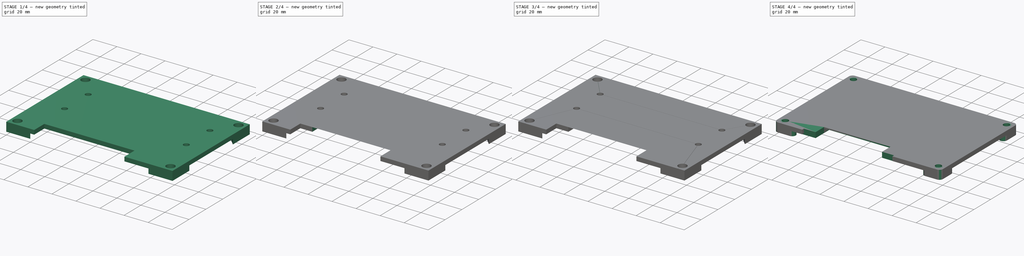
[diagram: build sequence overview — one tinted view per stage of 4, left to right]
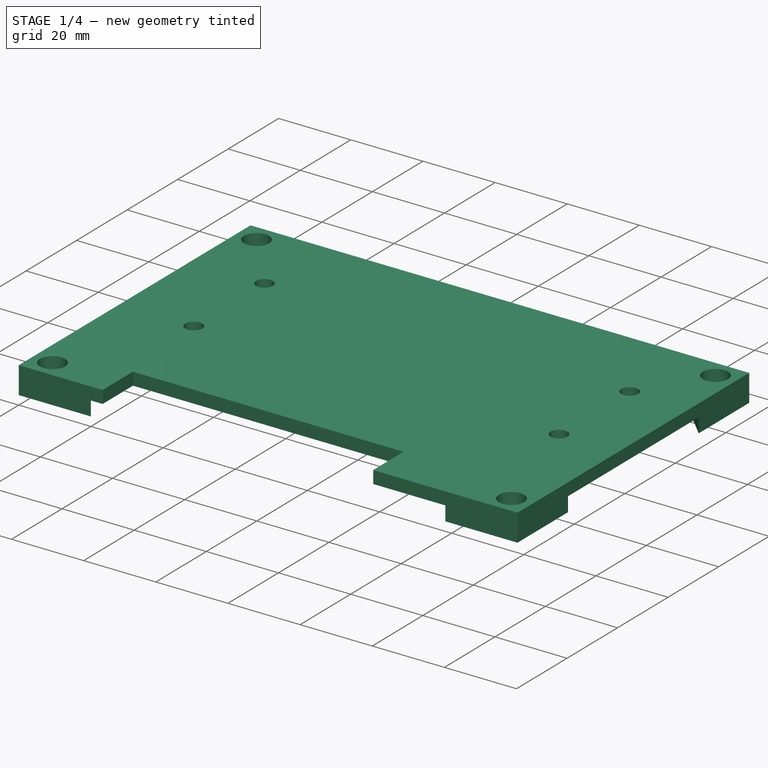
[diagram: stage 1 of 4 — iso view after this stage's code; geometry added in this stage tinted green]
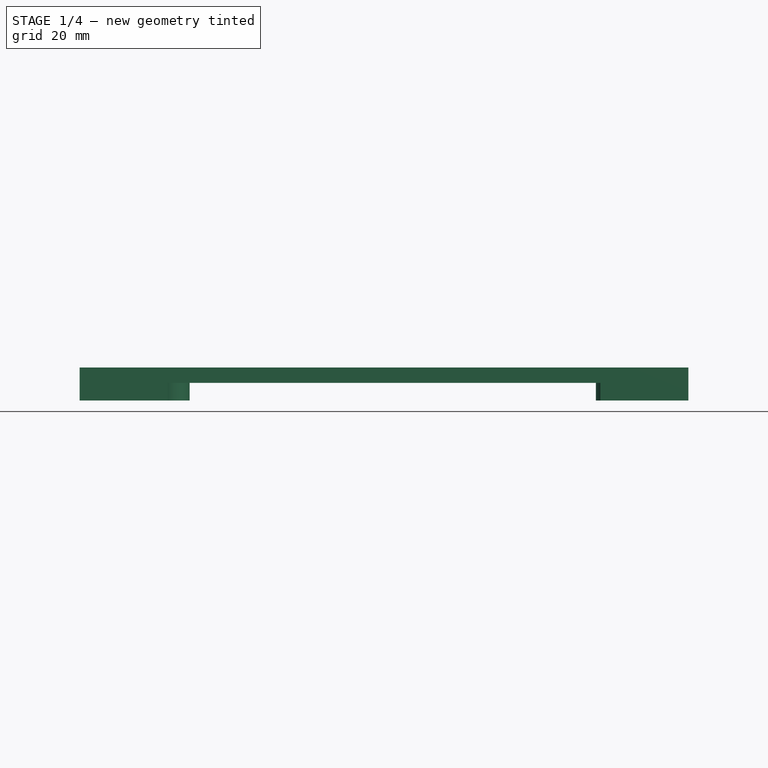
[diagram: stage 1 of 4 — front view after this stage's code; geometry added in this stage tinted green]
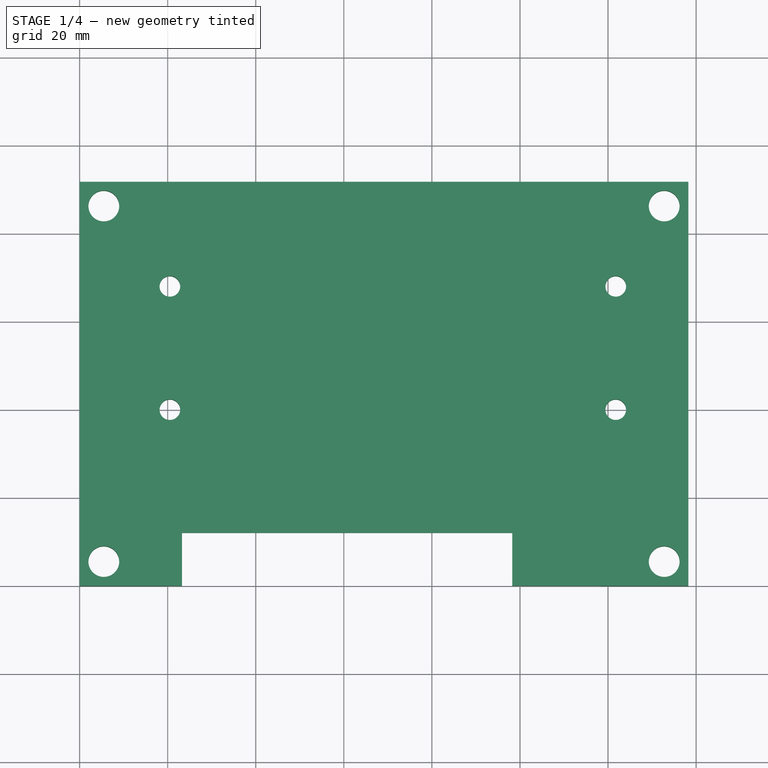
[diagram: stage 1 of 4 — top view after this stage's code; geometry added in this stage tinted green]
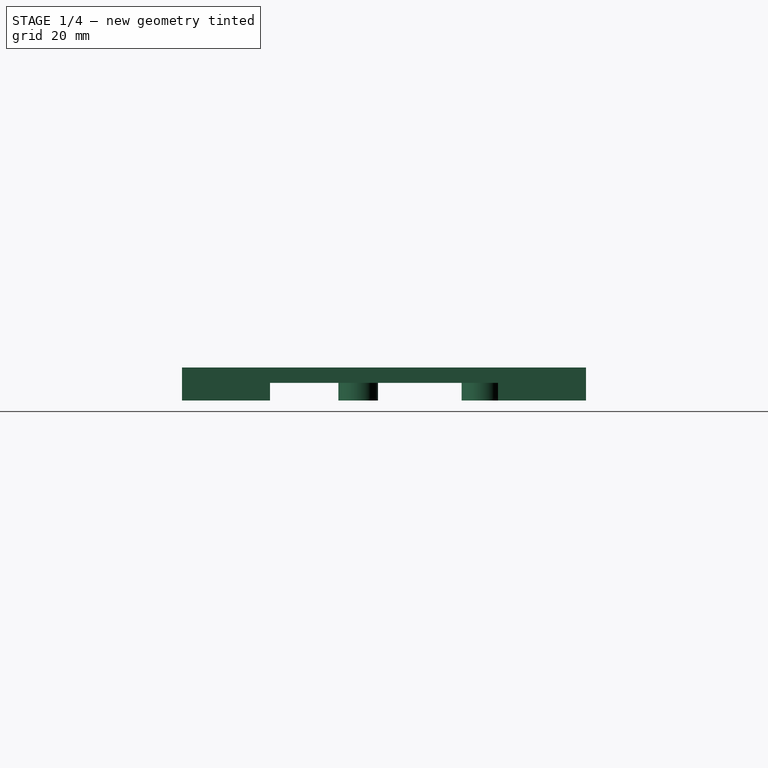
[diagram: stage 1 of 4 — right view after this stage's code; geometry added in this stage tinted green]
FCSTD DOCUMENT  (FreeCAD 0.18R4 (GitTag))
Label: LCD_back_V0.2.3
License: CreativeCommons Attribution-ShareAlike
LicenseURL: http://creativecommons.org/licenses/by-sa/4.0/
objects: Sketcher::SketchObject×9, PartDesign::Pocket×7, PartDesign::Pad×3, PartDesign::Chamfer×2, Part::FeaturePython×1, PartDesign::Fillet×1, PartDesign::Body×1
note: 34 computed .brp shape members not serialized (recipe doc carries the construction recipe); baked Part::Feature solids carry a one-line shape summary decoded from their .brp

FEATURE [Sketcher::SketchObject] Sketch
  MapMode = 5
  Support = -> [XY_Plane]
  sketch-geometry (12):
    g0: LineSegment StartX=0 StartY=91.75 StartZ=0 EndX=138.25 EndY=91.75 EndZ=0
    g1: LineSegment StartX=138.25 StartY=91.75 StartZ=0 EndX=138.25 EndY=0 EndZ=0
    g2: LineSegment StartX=138.25 StartY=0 StartZ=0 EndX=0 EndY=0 EndZ=0
    g3: LineSegment StartX=0 StartY=0 StartZ=0 EndX=0 EndY=91.75 EndZ=0
    g4: Circle CenterX=5.5 CenterY=5.5 CenterZ=0 NormalX=0 NormalY=0 NormalZ=1 AngleXU=0 Radius=3.5
    g5: Circle CenterX=132.75 CenterY=5.5 CenterZ=0 NormalX=0 NormalY=0 NormalZ=1 AngleXU=0 Radius=3.5
    g6: Circle CenterX=5.5 CenterY=86.25 CenterZ=0 NormalX=0 NormalY=0 NormalZ=1 AngleXU=0 Radius=3.5
    g7: Circle CenterX=132.75 CenterY=86.25 CenterZ=0 NormalX=0 NormalY=0 NormalZ=1 AngleXU=0 Radius=3.5
    g8: LineSegment [constr] StartX=5.5 StartY=86.25 StartZ=0 EndX=132.75 EndY=86.25 EndZ=0
    g9: LineSegment [constr] StartX=132.75 StartY=86.25 StartZ=0 EndX=132.75 EndY=5.5 EndZ=0
    g10: LineSegment [constr] StartX=132.75 StartY=5.5 StartZ=0 EndX=5.5 EndY=5.5 EndZ=0
    g11: LineSegment [constr] StartX=5.5 StartY=5.5 StartZ=0 EndX=5.5 EndY=86.25 EndZ=0
  constraints (31):
    c: Coincident(g0,g1)
    c: Coincident(g1,g2)
    c: Coincident(g2,g3)
    c: Coincident(g3,g0)
    c: Horizontal(g0)
    c: Horizontal(g2)
    c: Vertical(g1)
    c: Vertical(g3)
    c: Coincident(g2,g-1)
    c: DistanceX(g0,g0) = 138.25
    c: DistanceY(g1,g1) = 91.75
    c: Coincident(g8,g9)
    c: Coincident(g9,g10)
    c: Coincident(g10,g11)
    c: Coincident(g11,g8)
    c: Horizontal(g8)
    c: Horizontal(g10)
    c: Vertical(g9)
    c: Vertical(g11)
    c: Coincident(g5,g9)
    c: Coincident(g4,g10)
    c: Coincident(g6,g8)
    c: Coincident(g7,g8)
    c: DistanceX(g4) = 5.5
    c: DistanceY(g4) = 5.5
    c: DistanceX(g10,g10) = 127.25
    c: DistanceY(g11,g11) = 80.75
    c: Radius(g4) = 3.5
    c: Equal(g4,g5)
    c: Equal(g4,g6)
    c: Equal(g4,g7)
FEATURE [PartDesign::Pad] Pad
  Length = 7.5
  Length2 = 100
  Profile = -> Sketch
  Reversed = true
  Type = 0
FEATURE [Sketcher::SketchObject] Sketch001
  ExternalGeometry = -> [Pad]
  MapMode = 5
  Placement = pos=(0,0,-7.5) rot=(1,0,0;3.14159rad)
  Support = -> [Pad]
  sketch-geometry (4):
    g0: LineSegment StartX=23.25 StartY=0 StartZ=0 EndX=98.25 EndY=0 EndZ=0
    g1: LineSegment StartX=98.25 StartY=0 StartZ=0 EndX=98.25 EndY=-12 EndZ=0
    g2: LineSegment StartX=98.25 StartY=-12 StartZ=0 EndX=23.25 EndY=-12 EndZ=0
    g3: LineSegment StartX=23.25 StartY=-12 StartZ=0 EndX=23.25 EndY=0 EndZ=0
  constraints (12):
    c: Coincident(g0,g1)
    c: Coincident(g1,g2)
    c: Coincident(g2,g3)
    c: Coincident(g3,g0)
    c: Horizontal(g0)
    c: Horizontal(g2)
    c: Vertical(g1)
    c: Vertical(g3)
    c: DistanceX(g0) = 98.25
    c: DistanceY(g0) = 0
    c: DistanceX(g0,g0) = 75
    c: DistanceY(g1,g1) = 12
FEATURE [PartDesign::Pocket] Pocket
  BaseFeature = -> Pad
  Length = 5
  Length2 = 100
  Profile = -> Sketch001
  Type = 1
FEATURE [Sketcher::SketchObject] Sketch002
  ExternalGeometry = -> [Pocket]
  MapMode = 5
  Placement = pos=(0,0,-7.5) rot=(1,0,0;3.14159rad)
  Support = -> [Pocket]
  sketch-geometry (17):
    g0: LineSegment StartX=0 StartY=-20 StartZ=0 EndX=20 EndY=0 EndZ=0
    g1: LineSegment StartX=20 StartY=0 StartZ=0 EndX=118.25 EndY=0 EndZ=0
    g2: LineSegment StartX=118.25 StartY=0 StartZ=0 EndX=138.25 EndY=-20 EndZ=0
    g3: LineSegment StartX=138.25 StartY=-20 StartZ=0 EndX=138.25 EndY=-71.75 EndZ=0
    g4: LineSegment StartX=138.25 StartY=-71.75 StartZ=0 EndX=118.25 EndY=-91.75 EndZ=0
    g5: LineSegment StartX=118.25 StartY=-91.75 StartZ=0 EndX=20 EndY=-91.75 EndZ=0
    g6: LineSegment StartX=20 StartY=-91.75 StartZ=0 EndX=0 EndY=-71.75 EndZ=0
    g7: LineSegment StartX=0 StartY=-71.75 StartZ=0 EndX=0 EndY=-20 EndZ=0
    g8: Circle CenterX=20.5 CenterY=-40 CenterZ=0 NormalX=0 NormalY=0 NormalZ=1 AngleXU=0 Radius=4.5
    g9: Circle CenterX=20.5 CenterY=-68 CenterZ=0 NormalX=0 NormalY=0 NormalZ=1 AngleXU=0 Radius=4.5
    g10: Circle CenterX=121.75 CenterY=-68 CenterZ=0 NormalX=0 NormalY=0 NormalZ=1 AngleXU=0 Radius=4.5
    g11: LineSegment [constr] StartX=121.75 StartY=-68 StartZ=0 EndX=20.5 EndY=-68 EndZ=0
    g12: LineSegment [constr] StartX=20.5 StartY=-68 StartZ=0 EndX=20.5 EndY=-40 EndZ=0
    g13: LineSegment [constr] StartX=20.5 StartY=-40 StartZ=0 EndX=121.75 EndY=-40 EndZ=0
    g14: LineSegment [constr] StartX=121.75 StartY=-40 StartZ=0 EndX=121.75 EndY=-68 EndZ=0
    g15: LineSegment [constr] StartX=121.75 StartY=-68 StartZ=0 EndX=121.75 EndY=-40 EndZ=0
    g16: Circle CenterX=121.75 CenterY=-40 CenterZ=0 NormalX=0 NormalY=0 NormalZ=1 AngleXU=0 Radius=4.5
  constraints (47):
    c: Coincident(g0,g1)
    c: Coincident(g1,g2)
    c: Coincident(g2,g3)
    c: Coincident(g3,g4)
    c: Coincident(g4,g5)
    c: Coincident(g5,g6)
    c: Coincident(g6,g7)
    c: Coincident(g7,g0)
    c: Horizontal(g1)
    c: Horizontal(g5)
    c: Vertical(g3)
    c: Vertical(g7)
    c: PointOnObject(g0,g-4)
    c: PointOnObject(g2,g-3)
    c: PointOnObject(g1,g-1)
    c: PointOnObject(g4,g-5)
    c: Equal(g2,g6)
    c: Equal(g4,g0)
    c: Equal(g0,g6)
    c: Parallel(g2,g6)
    c: Parallel(g0,g4)
    c: Angle(g2) = -0.785398
    c: Angle(g4) = -2.35619
    c: DistanceY(g2) = -20
    c: Coincident(g11,g12)
    c: Coincident(g12,g13)
    c: Coincident(g13,g14)
    c: Coincident(g14,g11)
    c: Horizontal(g11)
    c: Horizontal(g13)
    c: Vertical(g12)
    c: Vertical(g14)
    c: Coincident(g8,g12)
    c: Coincident(g9,g11)
    c: Coincident(g10,g11)
    c: Vertical(g15)
    c: DistanceX(g8) = 20.5
    c: DistanceY(g8) = -40
    c: DistanceY(g12,g12) = 28
    c: Coincident(g15,g16)
    c: DistanceY(g15,g15) = 28
    c: DistanceX(g11,g11) = 101.25
    c: Coincident(g10,g15)
    c: Equal(g8,g9)
    c: Equal(g9,g16)
    c: Equal(g16,g10)
    c: Radius(g10) = 4.5
FEATURE [PartDesign::Pocket] Pocket001
  BaseFeature = -> Pocket
  Length = 4
  Length2 = 100
  Profile = -> Sketch002
  Type = 0
FEATURE [Sketcher::SketchObject] Sketch003
  ExternalGeometry = -> [Pocket001]
  MapMode = 5
  Placement = pos=(0,0,-7.5) rot=(1,0,0;3.14159rad)
  Support = -> [Pocket001]
  sketch-geometry (4):
    g0: Circle CenterX=20.5 CenterY=-40 CenterZ=0 NormalX=0 NormalY=0 NormalZ=1 AngleXU=0 Radius=2.35
    g1: Circle CenterX=121.75 CenterY=-40 CenterZ=0 NormalX=0 NormalY=0 NormalZ=1 AngleXU=0 Radius=2.35
    g2: Circle CenterX=121.75 CenterY=-68 CenterZ=0 NormalX=0 NormalY=0 NormalZ=1 AngleXU=0 Radius=2.35
    g3: Circle CenterX=20.5 CenterY=-68 CenterZ=0 NormalX=0 NormalY=0 NormalZ=1 AngleXU=0 Radius=2.35
  constraints (8):
    c: Coincident(g3,g-3)
    c: Coincident(g2,g-6)
    c: Coincident(g1,g-5)
    c: Coincident(g0,g-4)
    c: Radius(g0) = 2.35
    c: Equal(g0,g1)
    c: Equal(g0,g2)
    c: Equal(g0,g3)
FEATURE [PartDesign::Pocket] Pocket002
  BaseFeature = -> Pocket001
  Length = 5
  Length2 = 100
  Profile = -> Sketch003
  Type = 1
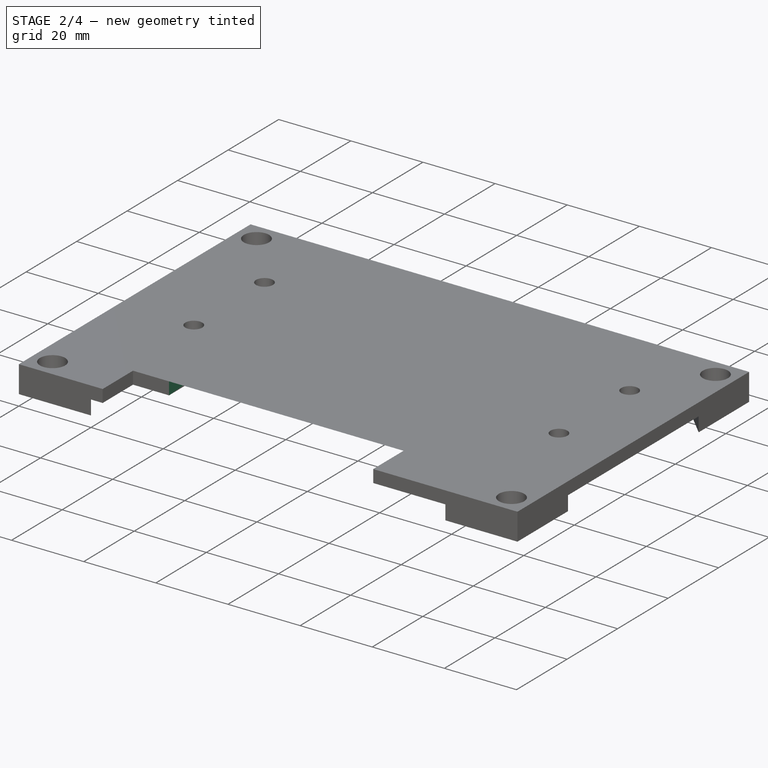
[diagram: stage 2 of 4 — iso view after this stage's code; geometry added in this stage tinted green]
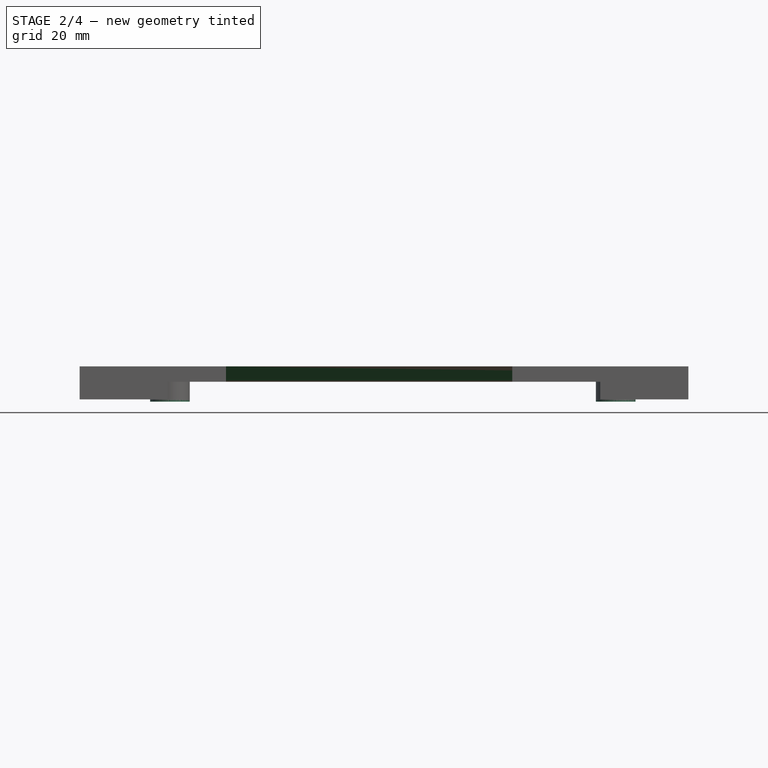
[diagram: stage 2 of 4 — front view after this stage's code; geometry added in this stage tinted green]
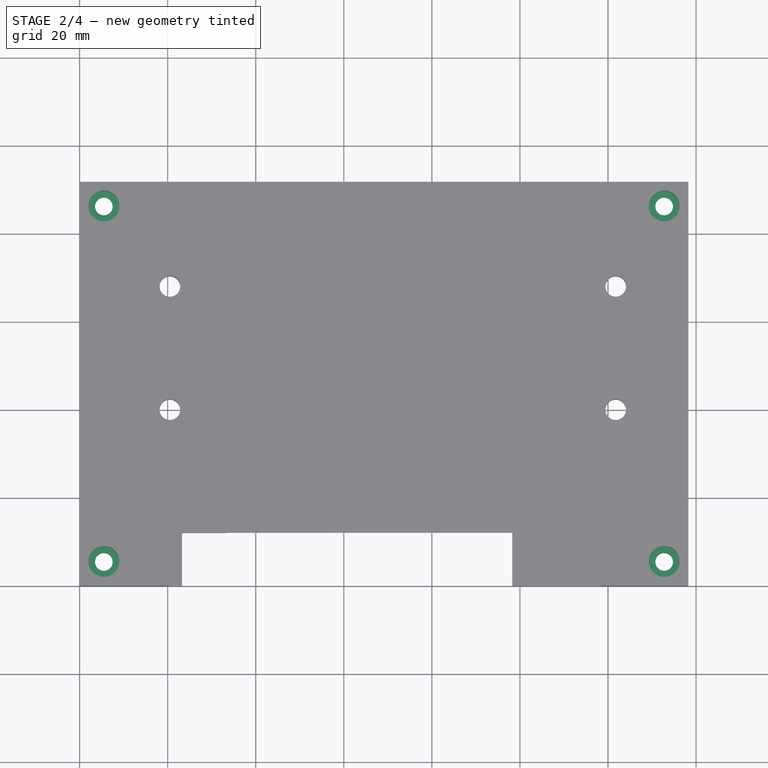
[diagram: stage 2 of 4 — top view after this stage's code; geometry added in this stage tinted green]
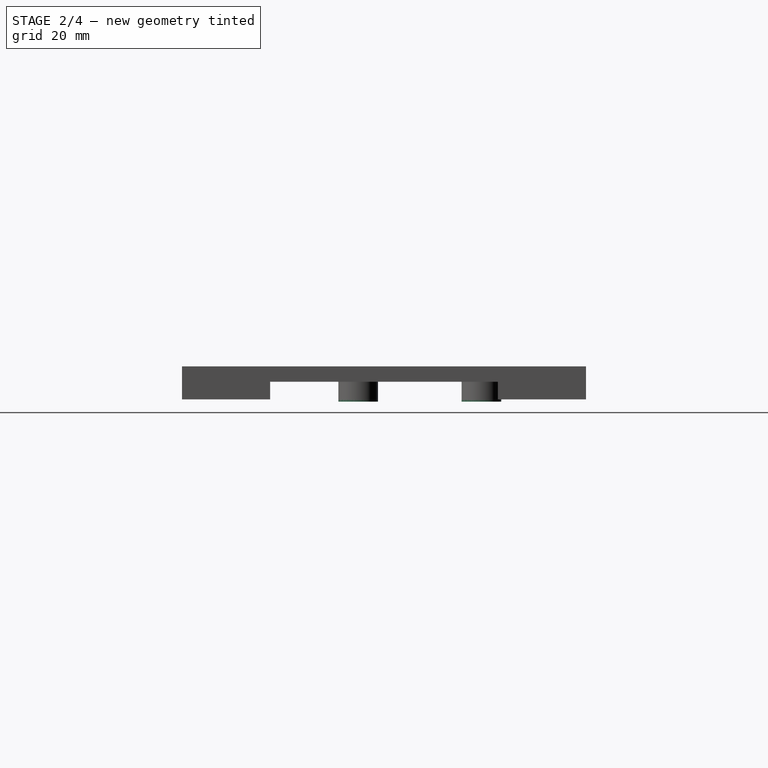
[diagram: stage 2 of 4 — right view after this stage's code; geometry added in this stage tinted green]
FEATURE [Sketcher::SketchObject] Sketch004
  ExternalGeometry = -> [Pocket002]
  MapMode = 5
  Placement = pos=(98.25,0,0) rot=(0.57735,-0.57735,-0.57735;2.0944rad)
  Support = -> [Pocket002]
  sketch-geometry (3):
    g0: LineSegment StartX=-12 StartY=-3.5 StartZ=0 EndX=-32 EndY=-3.5 EndZ=0
    g1: LineSegment StartX=-12 StartY=-3.5 StartZ=0 EndX=-12 EndY=-7.0002e-12 EndZ=0
    g2: ArcOfCircle CenterX=-32 CenterY=55.3929 CenterZ=0 NormalX=0 NormalY=0 NormalZ=1 AngleXU=0 Radius=58.8929 StartAngle=4.71239 EndAngle=5.05888
  constraints (8):
    c: Coincident(g0,g1)
    c: Coincident(g0,g-3)
    c: Vertical(g1)
    c: Horizontal(g0)
    c: Coincident(g1,g2)
    c: DistanceX(g0,g0) = 20
    c: DistanceY(g1,g1) = 3.5
    c: Tangent(g0,g2) = 1.5708
FEATURE [PartDesign::Pocket] Pocket003
  BaseFeature = -> Pocket002
  Length = 65
  Length2 = 100
  Profile = -> Sketch004
  Reversed = true
  Type = 0
FEATURE [Sketcher::SketchObject] Sketch005
  ExternalGeometry = -> [Pocket003]
  MapMode = 5
  Placement = pos=(0,0,-7.5) rot=(1,0,0;3.14159rad)
  Support = -> [Pocket003]
  sketch-geometry (8):
    g0: Circle CenterX=5.5 CenterY=-86.25 CenterZ=0 NormalX=0 NormalY=0 NormalZ=1 AngleXU=0 Radius=2
    g1: Circle CenterX=132.75 CenterY=-5.5 CenterZ=0 NormalX=0 NormalY=0 NormalZ=1 AngleXU=0 Radius=2
    g2: Circle CenterX=5.5 CenterY=-5.5 CenterZ=0 NormalX=0 NormalY=0 NormalZ=1 AngleXU=0 Radius=2
    g3: Circle CenterX=132.75 CenterY=-86.25 CenterZ=0 NormalX=0 NormalY=0 NormalZ=1 AngleXU=0 Radius=2
    g4: Circle CenterX=5.5 CenterY=-5.5 CenterZ=0 NormalX=0 NormalY=0 NormalZ=1 AngleXU=0 Radius=3.5
    g5: Circle CenterX=132.75 CenterY=-86.25 CenterZ=0 NormalX=0 NormalY=0 NormalZ=1 AngleXU=0 Radius=3.5
    g6: Circle CenterX=132.75 CenterY=-5.5 CenterZ=0 NormalX=0 NormalY=0 NormalZ=1 AngleXU=0 Radius=3.5
    g7: Circle CenterX=5.5 CenterY=-86.25 CenterZ=0 NormalX=0 NormalY=0 NormalZ=1 AngleXU=0 Radius=3.5
  constraints (16):
    c: Radius(g0) = 2
    c: Equal(g0,g1)
    c: Equal(g0,g2)
    c: Equal(g3,g2)
    c: Coincident(g0,g7)
    c: Coincident(g2,g4)
    c: Coincident(g3,g5)
    c: Coincident(g1,g6)
    c: Equal(g6,g5)
    c: Equal(g5,g4)
    c: Equal(g4,g7)
    c: Coincident(g-8,g2)
    c: Coincident(g0,g-12)
    c: Coincident(g3,g-9)
    c: Coincident(g1,g-13)
    c: Equal(g6,g-13)
FEATURE [PartDesign::Pad] Pad001
  BaseFeature = -> Pocket003
  Length = 1
  Length2 = 100
  Profile = -> Sketch005
  Reversed = true
  Type = 0
FEATURE [Sketcher::SketchObject] Sketch007
  ExternalGeometry = -> [Pad001]
  MapMode = 5
  Placement = pos=(0,0,-7.5) rot=(1,0,0;3.14159rad)
  Support = -> [Pad001]
  sketch-geometry (8):
    g0: Circle CenterX=20.5 CenterY=-40 CenterZ=0 NormalX=0 NormalY=0 NormalZ=1 AngleXU=0 Radius=2.35
    g1: Circle CenterX=20.5 CenterY=-40 CenterZ=0 NormalX=0 NormalY=0 NormalZ=1 AngleXU=0 Radius=4.5
    g2: Circle CenterX=121.75 CenterY=-40 CenterZ=0 NormalX=0 NormalY=0 NormalZ=1 AngleXU=0 Radius=4.5
    g3: Circle CenterX=121.75 CenterY=-40 CenterZ=0 NormalX=0 NormalY=0 NormalZ=1 AngleXU=0 Radius=2.35
    g4: Circle CenterX=121.75 CenterY=-68 CenterZ=0 NormalX=0 NormalY=0 NormalZ=1 AngleXU=0 Radius=2.35
    g5: Circle CenterX=121.75 CenterY=-68 CenterZ=0 NormalX=0 NormalY=0 NormalZ=1 AngleXU=0 Radius=4.5
    g6: Circle CenterX=20.5 CenterY=-68 CenterZ=0 NormalX=0 NormalY=0 NormalZ=1 AngleXU=0 Radius=4.5
    g7: Circle CenterX=20.5 CenterY=-68 CenterZ=0 NormalX=0 NormalY=0 NormalZ=1 AngleXU=0 Radius=2.35
  constraints (16):
    c: Coincident(g6,g7)
    c: Coincident(g6,g-3)
    c: Coincident(g0,g1)
    c: Coincident(g0,g-4)
    c: Coincident(g2,g3)
    c: Coincident(g2,g-5)
    c: Coincident(g4,g5)
    c: Coincident(g4,g-6)
    c: Radius(g4) = 2.35
    c: Equal(g4,g3)
    c: Equal(g4,g0)
    c: Equal(g4,g7)
    c: Radius(g2) = 4.5
    c: Equal(g5,g2)
    c: Equal(g2,g1)
    c: Equal(g1,g6)
FEATURE [PartDesign::Pad] Pad002
  BaseFeature = -> Pad001
  Length = 0.5
  Length2 = 100
  Profile = -> Sketch007
  Type = 0
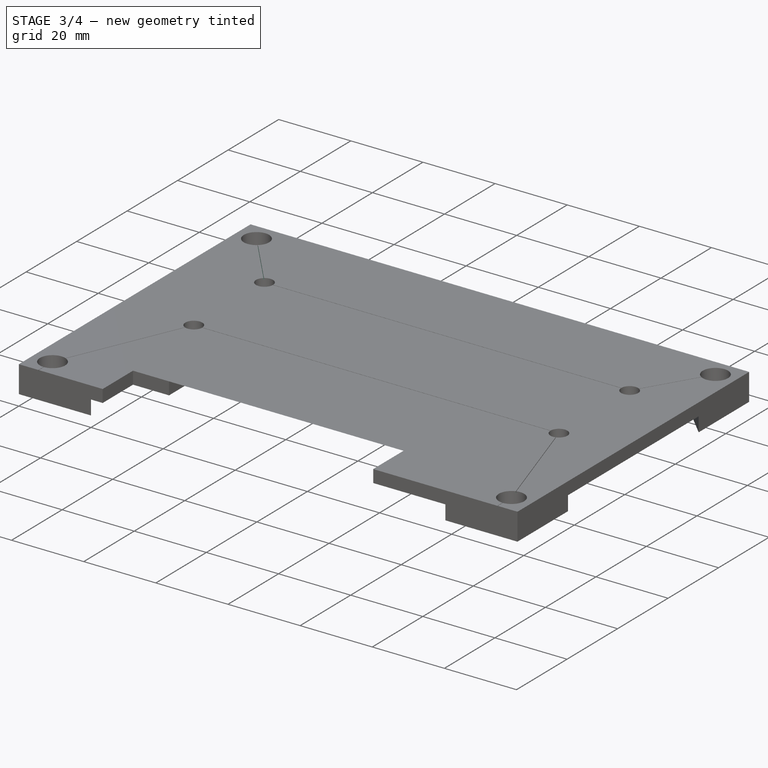
[diagram: stage 3 of 4 — iso view after this stage's code; geometry added in this stage tinted green]
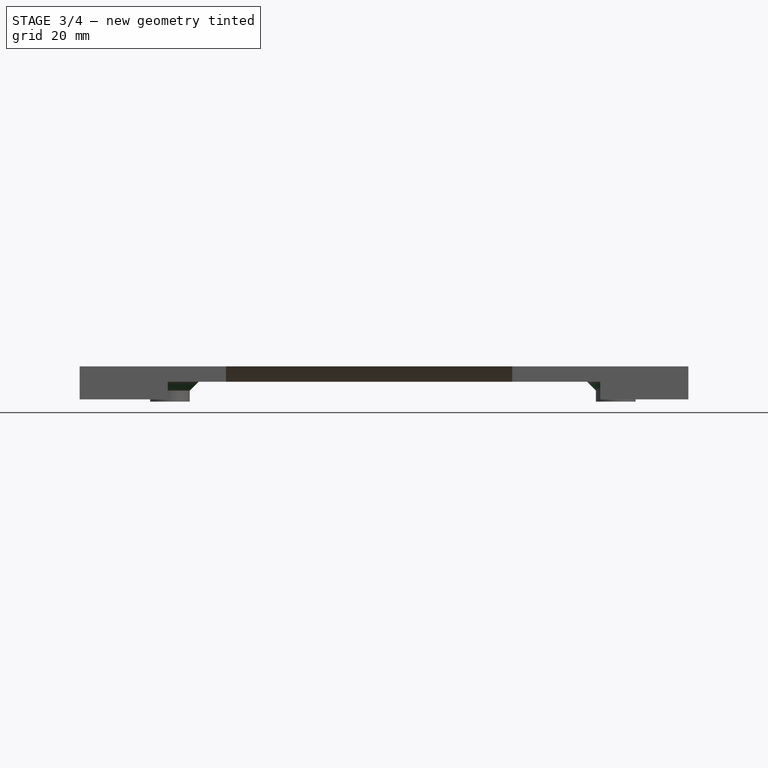
[diagram: stage 3 of 4 — front view after this stage's code; geometry added in this stage tinted green]
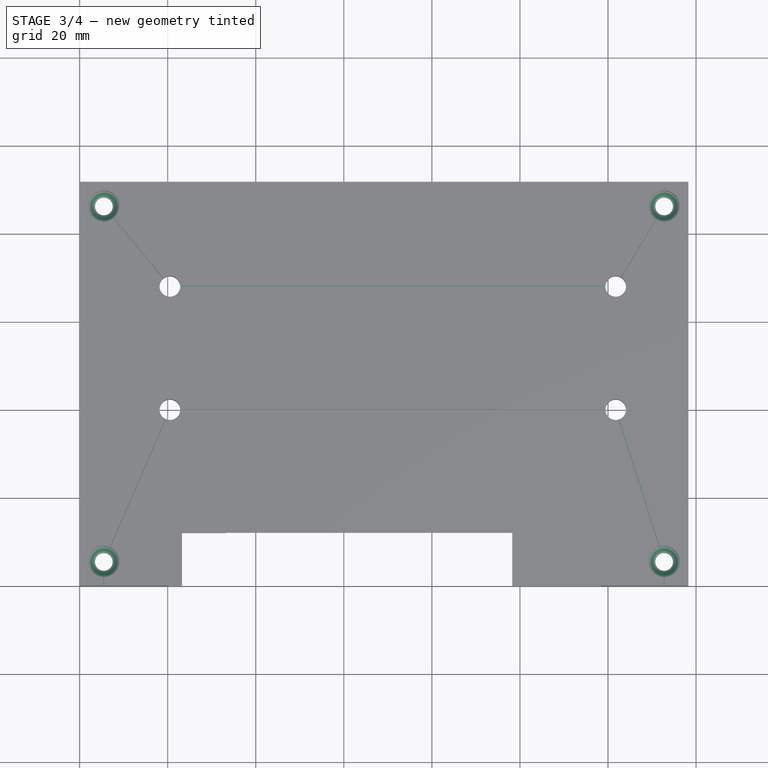
[diagram: stage 3 of 4 — top view after this stage's code; geometry added in this stage tinted green]
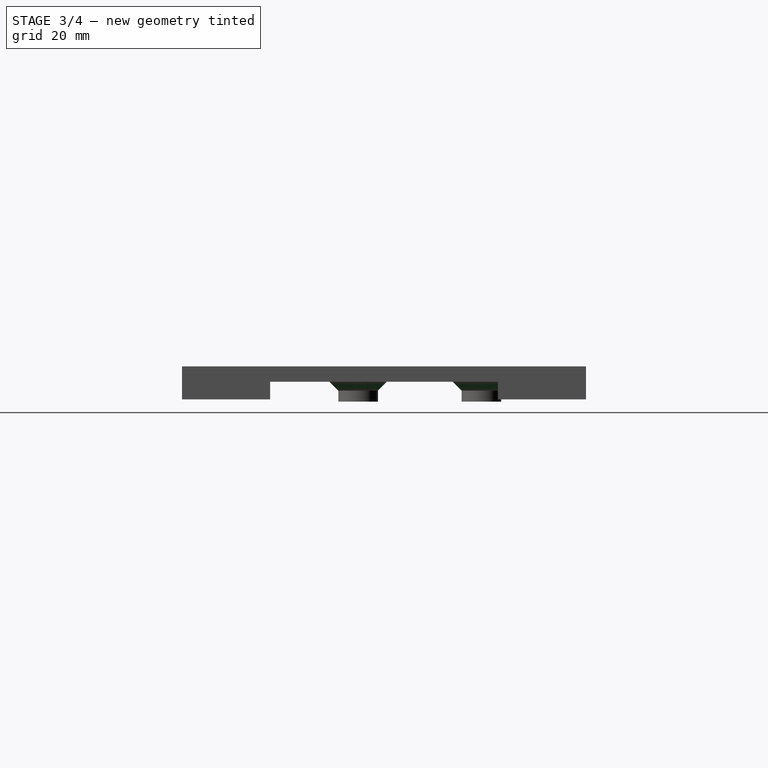
[diagram: stage 3 of 4 — right view after this stage's code; geometry added in this stage tinted green]
FEATURE [Sketcher::SketchObject] Sketch006
  ExternalGeometry = -> [Pad002]
  MapMode = 5
  sketch-geometry (36):
    g0: LineSegment StartX=22.8495 StartY=68.05 StartZ=0 EndX=119.401 EndY=68.05 EndZ=0
    g1: LineSegment StartX=119.401 StartY=68.05 StartZ=0 EndX=119.401 EndY=67.95 EndZ=0
    g2: LineSegment StartX=119.401 StartY=67.95 StartZ=0 EndX=22.8495 EndY=67.95 EndZ=0
    g3: LineSegment StartX=22.8495 StartY=67.95 StartZ=0 EndX=22.8495 EndY=68.05 EndZ=0
    g4: LineSegment StartX=22.8495 StartY=40.05 StartZ=0 EndX=119.401 EndY=40.05 EndZ=0
    g5: LineSegment StartX=119.401 StartY=40.05 StartZ=0 EndX=119.401 EndY=39.95 EndZ=0
    g6: LineSegment StartX=119.401 StartY=39.95 StartZ=0 EndX=22.8495 EndY=39.95 EndZ=0
    g7: LineSegment StartX=22.8495 StartY=39.95 StartZ=0 EndX=22.8495 EndY=40.05 EndZ=0
    g8: LineSegment StartX=7.76078 StartY=83.5781 StartZ=0 EndX=19.0468 EndY=69.8468 EndZ=0
    g9: LineSegment StartX=19.0468 StartY=69.8468 StartZ=0 EndX=18.9695 EndY=69.7833 EndZ=0
    g10: LineSegment StartX=18.9695 StartY=69.7833 StartZ=0 EndX=7.68352 EndY=83.5146 EndZ=0
    g11: LineSegment StartX=7.68352 StartY=83.5146 StartZ=0 EndX=7.76078 EndY=83.5781 EndZ=0
    g12: LineSegment StartX=122.92 StartY=70.038 StartZ=0 EndX=130.901 EndY=83.2785 EndZ=0
    g13: LineSegment StartX=130.901 StartY=83.2785 StartZ=0 EndX=130.986 EndY=83.2269 EndZ=0
    g14: LineSegment StartX=130.986 StartY=83.2269 StartZ=0 EndX=123.006 EndY=69.9864 EndZ=0
    g15: LineSegment StartX=123.006 StartY=69.9864 StartZ=0 EndX=122.92 EndY=70.038 EndZ=0
    g16: LineSegment StartX=122.416 StartY=37.7464 StartZ=0 EndX=131.639 EndY=8.81908 EndZ=0
    g17: LineSegment StartX=131.639 StartY=8.81908 StartZ=0 EndX=131.735 EndY=8.84945 EndZ=0
    g18: LineSegment StartX=131.735 StartY=8.84945 StartZ=0 EndX=122.511 EndY=37.7767 EndZ=0
    g19: LineSegment StartX=122.511 StartY=37.7767 StartZ=0 EndX=122.416 EndY=37.7464 EndZ=0
    g20: LineSegment StartX=19.5174 StartY=37.8653 StartZ=0 EndX=19.6091 EndY=37.8254 EndZ=0
    g21: LineSegment StartX=19.6091 StartY=37.8254 StartZ=0 EndX=6.94125 EndY=8.68948 EndZ=0
    g22: LineSegment StartX=6.94125 StartY=8.68948 StartZ=0 EndX=6.84955 EndY=8.72935 EndZ=0
    g23: LineSegment StartX=6.84955 StartY=8.72935 StartZ=0 EndX=19.5174 EndY=37.8653 EndZ=0
    g24: LineSegment [constr] StartX=5.5 StartY=5.5 StartZ=0 EndX=20.5 EndY=40 EndZ=0
    g25: LineSegment [constr] StartX=121.75 StartY=40 StartZ=0 EndX=132.75 EndY=5.5 EndZ=0
    g26: LineSegment [constr] StartX=121.75 StartY=68 StartZ=0 EndX=132.75 EndY=86.25 EndZ=0
    g27: LineSegment [constr] StartX=5.5 StartY=86.25 StartZ=0 EndX=20.5 EndY=68 EndZ=0
    g28: LineSegment StartX=5.45 StartY=2.00036 StartZ=0 EndX=5.55 EndY=2.00036 EndZ=0
    g29: LineSegment StartX=5.55 StartY=2.00036 StartZ=0 EndX=5.55 EndY=0 EndZ=0
    g30: LineSegment StartX=5.55 StartY=0 StartZ=0 EndX=5.45 EndY=0 EndZ=0
    g31: LineSegment StartX=5.45 StartY=0 StartZ=0 EndX=5.45 EndY=2.00036 EndZ=0
    g32: LineSegment StartX=132.7 StartY=2.00036 StartZ=0 EndX=132.8 EndY=2.00036 EndZ=0
    g33: LineSegment StartX=132.8 StartY=2.00036 StartZ=0 EndX=132.8 EndY=0 EndZ=0
    g34: LineSegment StartX=132.8 StartY=0 StartZ=0 EndX=132.7 EndY=0 EndZ=0
    g35: LineSegment StartX=132.7 StartY=0 StartZ=0 EndX=132.7 EndY=2.00036 EndZ=0
  constraints (107):
    c: Coincident(g0,g1)
    c: Coincident(g1,g2)
    c: Coincident(g2,g3)
    c: Coincident(g3,g0)
    c: Horizontal(g0)
    c: Horizontal(g2)
    c: Vertical(g1)
    c: Vertical(g3)
    c: Coincident(g4,g5)
    c: Coincident(g5,g6)
    c: Coincident(g6,g7)
    c: Coincident(g7,g4)
    c: Horizontal(g4)
    c: Horizontal(g6)
    c: Vertical(g5)
    c: Vertical(g7)
    c: PointOnObject(g6,g-6)
    c: PointOnObject(g4,g-6)
    c: PointOnObject(g2,g-5)
    c: PointOnObject(g0,g-5)
    c: PointOnObject(g1,g-3)
    c: PointOnObject(g5,g-4)
    c: Equal(g5,g1)
    c: DistanceY(g1,g1) = 0.1
    c: Coincident(g8,g9)
    c: Coincident(g9,g10)
    c: Coincident(g10,g11)
    c: Coincident(g11,g8)
    c: Coincident(g12,g13)
    c: Coincident(g13,g14)
    c: Coincident(g14,g15)
    c: Coincident(g16,g17)
    c: Coincident(g17,g18)
    c: Coincident(g18,g19)
    c: Coincident(g19,g16)
    c: Coincident(g20,g21)
    c: Coincident(g21,g22)
    c: Coincident(g22,g23)
    c: Coincident(g23,g20)
    c: Coincident(g12,g15)
    c: Perpendicular(g21,g22)
    c: Perpendicular(g21,g20)
    c: Parallel(g21,g23)
    c: PointOnObject(g20,g-6)
    c: PointOnObject(g20,g-6)
    c: PointOnObject(g21,g-7)
    c: PointOnObject(g22,g-7)
    c: Distance(g22) = 0.1
    c: Coincident(g24,g-6)
    c: Coincident(g24,g-7)
    c: Symmetric(g21,g22,g24)
    c: Parallel(g24,g21)
    c: PointOnObject(g16,g-8)
    c: PointOnObject(g17,g-8)
    c: PointOnObject(g16,g-4)
    c: PointOnObject(g18,g-4)
    c: Coincident(g25,g-8)
    c: Coincident(g25,g-4)
    c: Perpendicular(g18,g19)
    c: Symmetric(g18,g16,g25)
    c: Parallel(g18,g16)
    c: Parallel(g16,g25)
    c: Distance(g19) = 0.1
    c: PointOnObject(g12,g-3)
    c: PointOnObject(g14,g-3)
    c: PointOnObject(g13,g-9)
    c: PointOnObject(g12,g-9)
    c: Coincident(g26,g-9)
    c: Coincident(g26,g-3)
    c: Perpendicular(g14,g15)
    c: Parallel(g14,g26)
    c: Parallel(g26,g12)
    c: Distance(g15) = 0.1
    c: PointOnObject(g9,g-5)
    c: PointOnObject(g8,g-5)
    c: PointOnObject(g10,g-10)
    c: PointOnObject(g8,g-10)
    c: Coincident(g27,g-5)
    c: Coincident(g27,g-10)
    c: Perpendicular(g11,g8)
    c: Parallel(g27,g8)
    c: Parallel(g27,g10)
    c: Distance(g9) = 0.1
    c: Coincident(g28,g29)
    c: Coincident(g29,g30)
    c: Coincident(g30,g31)
    c: Coincident(g31,g28)
    c: Horizontal(g28)
    c: Horizontal(g30)
    c: Vertical(g29)
    c: Vertical(g31)
    c: Coincident(g32,g33)
    c: Coincident(g33,g34)
    c: Coincident(g34,g35)
    c: Coincident(g35,g32)
    c: Horizontal(g32)
    c: Horizontal(g34)
    c: Vertical(g33)
    c: Vertical(g35)
    c: PointOnObject(g32,g-8)
    c: PointOnObject(g32,g-8)
    c: PointOnObject(g34,g-1)
    c: PointOnObject(g28,g-7)
    c: PointOnObject(g29,g-1)
    c: PointOnObject(g28,g-7)
    c: Equal(g28,g32)
    c: DistanceX(g32,g32) = 0.1
FEATURE [PartDesign::Pocket] Pocket004
  BaseFeature = -> Pad002
  Length = 0.4
  Length2 = 100
  Profile = -> Sketch006
  Type = 0
FEATURE [PartDesign::Chamfer] Chamfer
  Base = -> Pocket004 [Edge157,Edge113,Edge81,Edge149]
  BaseFeature = -> Pocket004
  Size = 1.49
FEATURE [PartDesign::Chamfer] Chamfer001
  Base = -> Chamfer [Edge181,Edge182,Edge179,Edge180]
  BaseFeature = -> Chamfer
  Size = 2
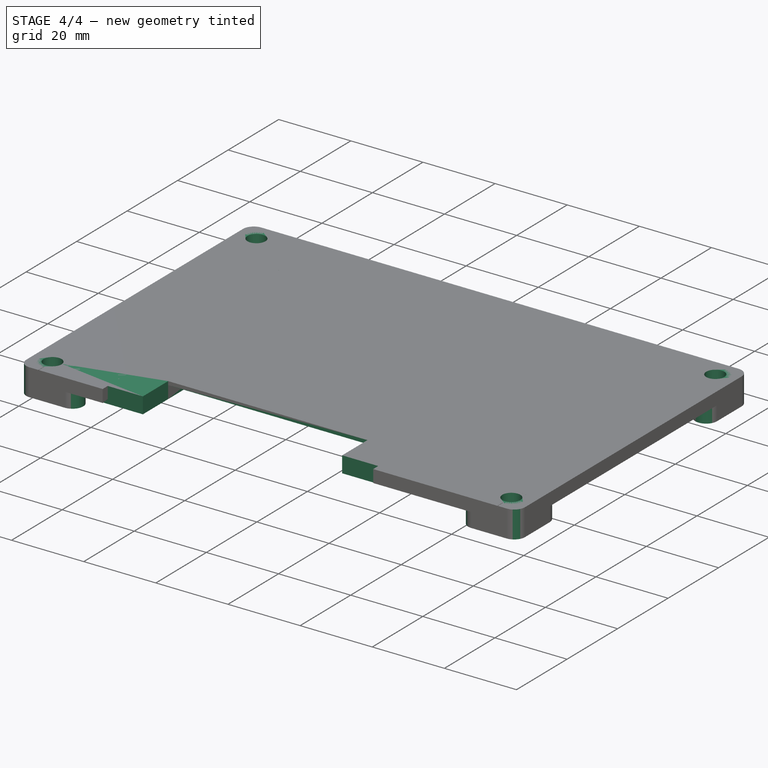
[diagram: stage 4 of 4 — iso view after this stage's code; geometry added in this stage tinted green]
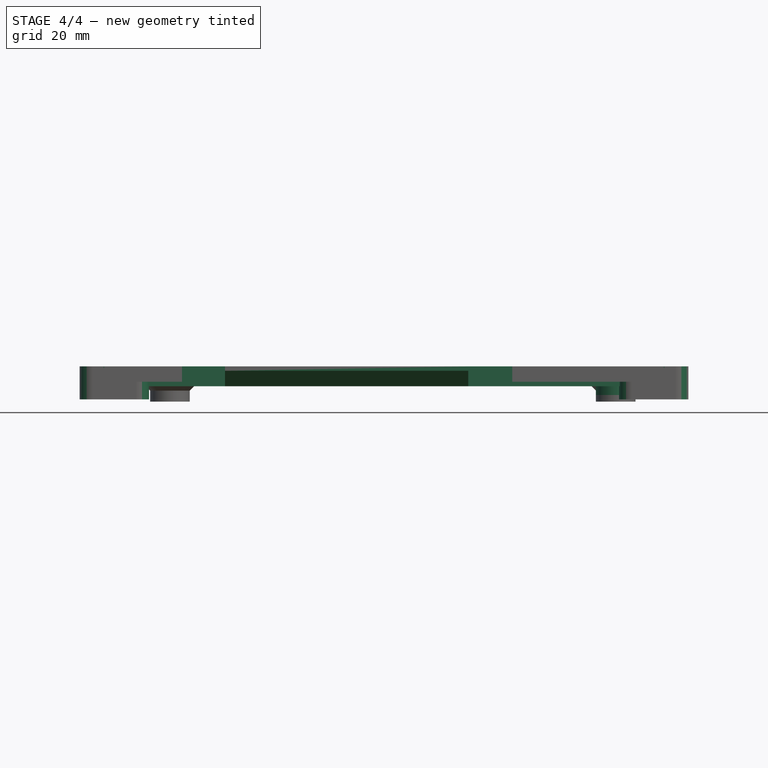
[diagram: stage 4 of 4 — front view after this stage's code; geometry added in this stage tinted green]
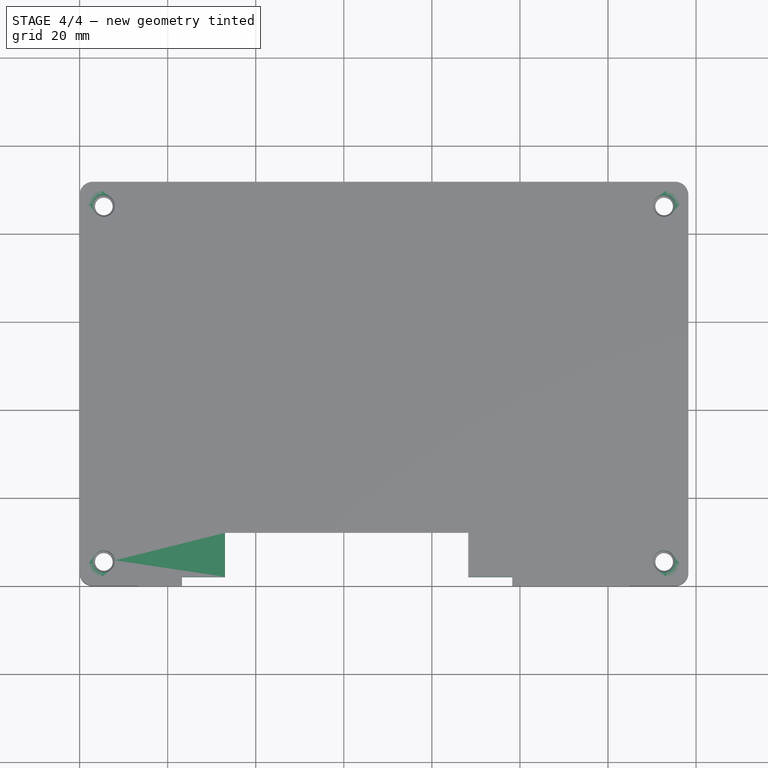
[diagram: stage 4 of 4 — top view after this stage's code; geometry added in this stage tinted green]
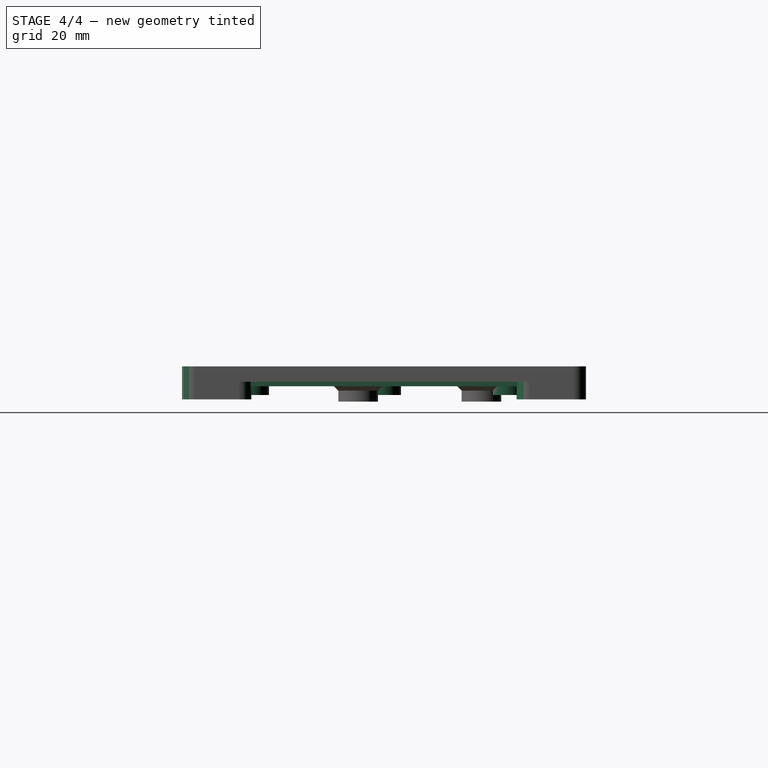
[diagram: stage 4 of 4 — right view after this stage's code; geometry added in this stage tinted green]
FEATURE [Part::FeaturePython] touchscreen_back_01  # a2plus imported part (geometry in sourceFile) (typed FeaturePython)
  Placement = pos=(2,2,-6.5) rot=(0,0,1;0rad)
  fixedPosition = true
  sourceFile = <userpath>/Projects/taz-quiver/Production_parts/Printed_parts/Control_box/LCD/touchscreen_back.fcstd
  timeLastImport = 1.52536e+09
  updateColors = true
FEATURE [PartDesign::Pocket] Pocket005
  BaseFeature = -> Chamfer001
  Length = 10
  Length2 = 100
  Profile = -> Chamfer001 [Face12]
  Type = 0
FEATURE [PartDesign::Fillet] Fillet
  Base = -> Pocket005 [Edge61,Edge60,Edge58,Edge65,Edge24,Edge34,Edge32,Edge23,Edge26,Edge21,Edge27,Edge30]
  BaseFeature = -> Pocket005
  Radius = 3
FEATURE [Sketcher::SketchObject] Sketch008
  ExternalGeometry = -> [Fillet]
  MapMode = 5
  Support = -> [Fillet]
  sketch-geometry (4):
    g0: Circle CenterX=121.75 CenterY=68 CenterZ=0 NormalX=0 NormalY=0 NormalZ=1 AngleXU=0 Radius=2.75
    g1: Circle CenterX=121.75 CenterY=40 CenterZ=0 NormalX=0 NormalY=0 NormalZ=1 AngleXU=0 Radius=2.75
    g2: Circle CenterX=20.5 CenterY=40 CenterZ=0 NormalX=0 NormalY=0 NormalZ=1 AngleXU=0 Radius=2.75
    g3: Circle CenterX=20.5 CenterY=68 CenterZ=0 NormalX=0 NormalY=0 NormalZ=1 AngleXU=0 Radius=2.75
  constraints (8):
    c: Coincident(g0,g-3)
    c: Coincident(g1,g-4)
    c: Coincident(g2,g-6)
    c: Coincident(g3,g-5)
    c: Radius(g2) = 2.75
    c: Equal(g2,g3)
    c: Equal(g2,g0)
    c: Equal(g2,g1)
FEATURE [PartDesign::Pocket] Pocket006
  BaseFeature = -> Fillet
  Length = 0.75
  Length2 = 100
  Profile = -> Sketch008
  Refine = true
  Type = 0
FEATURE [PartDesign::Body] Body
  Group = -> [Sketch,Pad,Sketch001,Pocket,Sketch002,Pocket001,Sketch003,Pocket002,Sketch004,Pocket003,Sketch005,Pad001,Sketch006,Sketch007,Pad002,Pocket004,Chamfer,Chamfer001,Pocket005,Fillet,Sketch008,Pocket006]
  Origin = -> Origin
  Tip = -> Pocket006
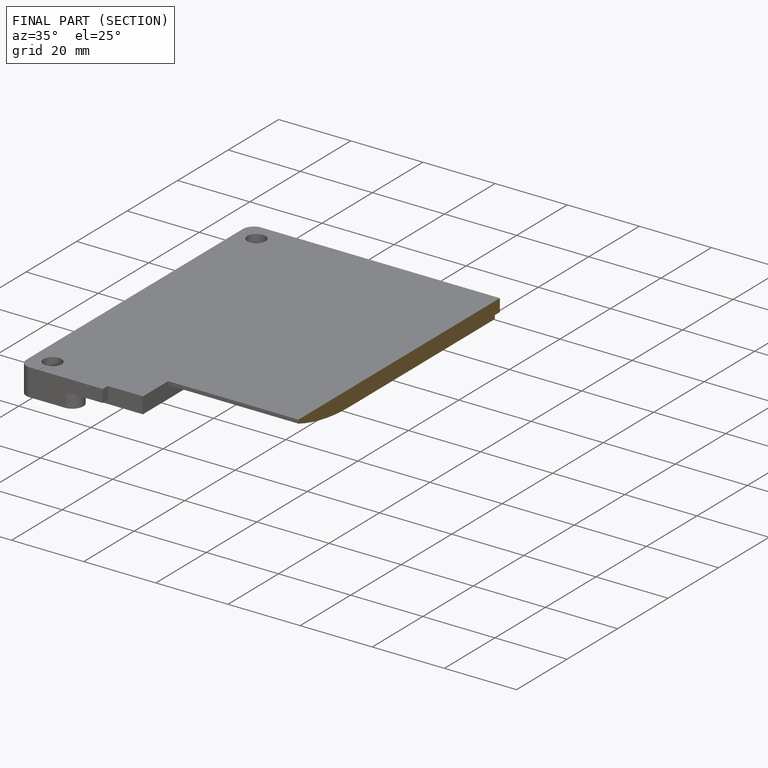
[diagram: finished part — half-section view (interior)]
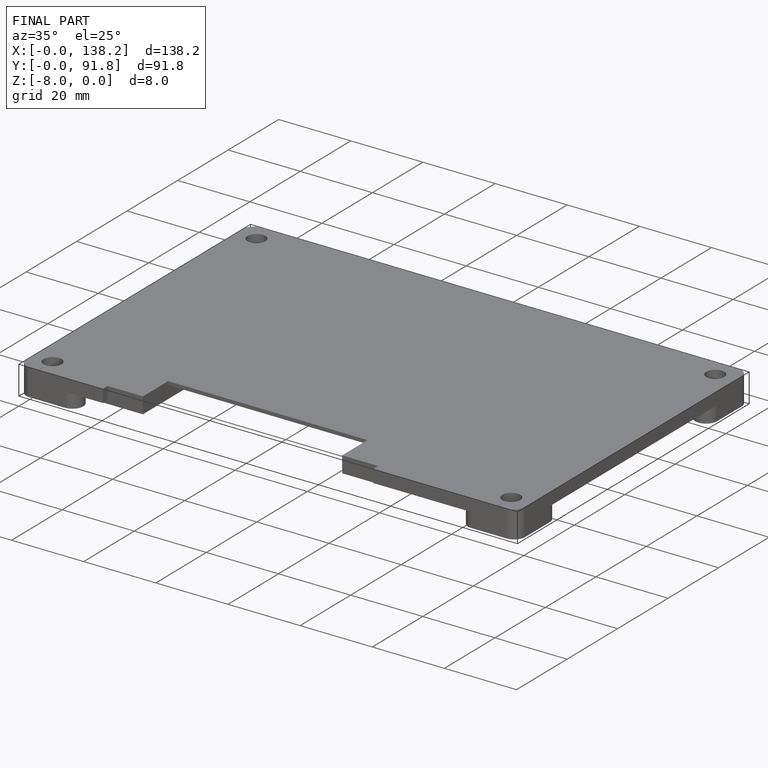
[diagram: finished part — iso view with bounding-box wireframe]
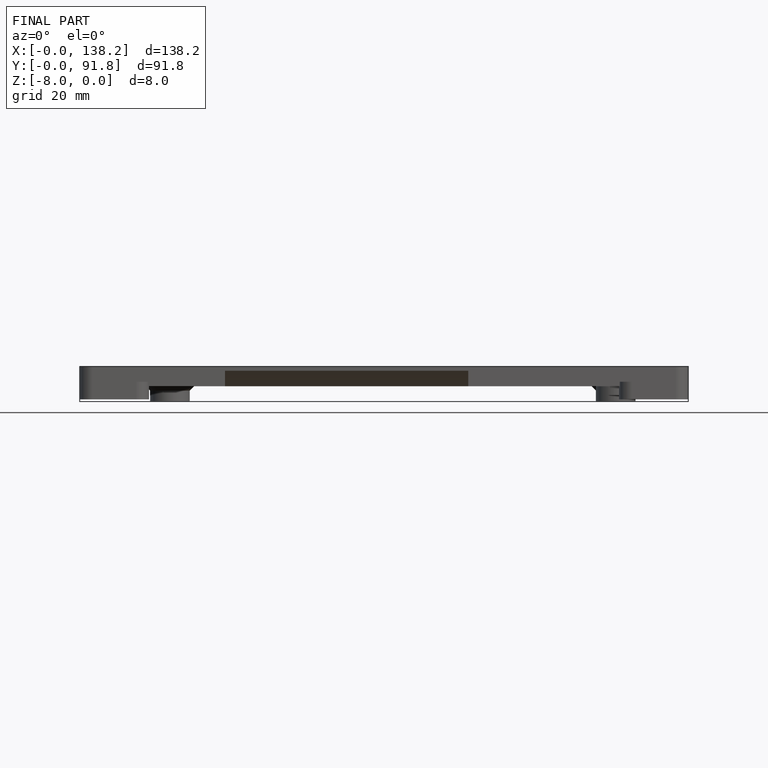
[diagram: finished part — front view with bounding-box wireframe]
